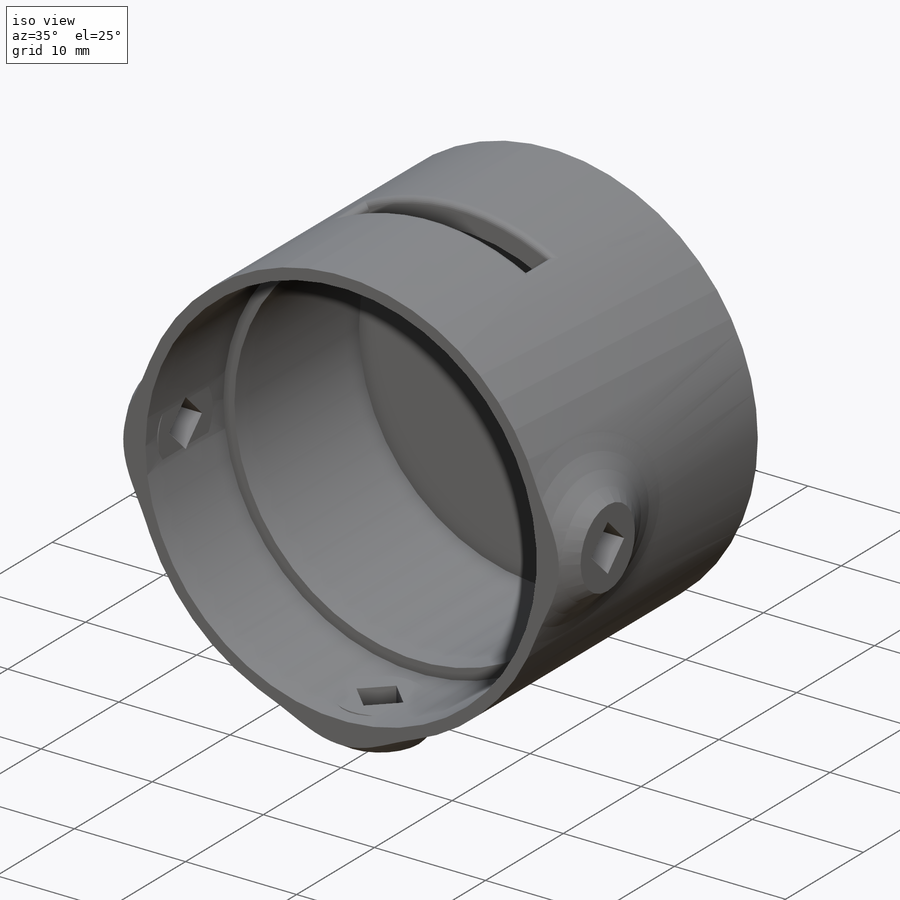
[diagram: iso view]
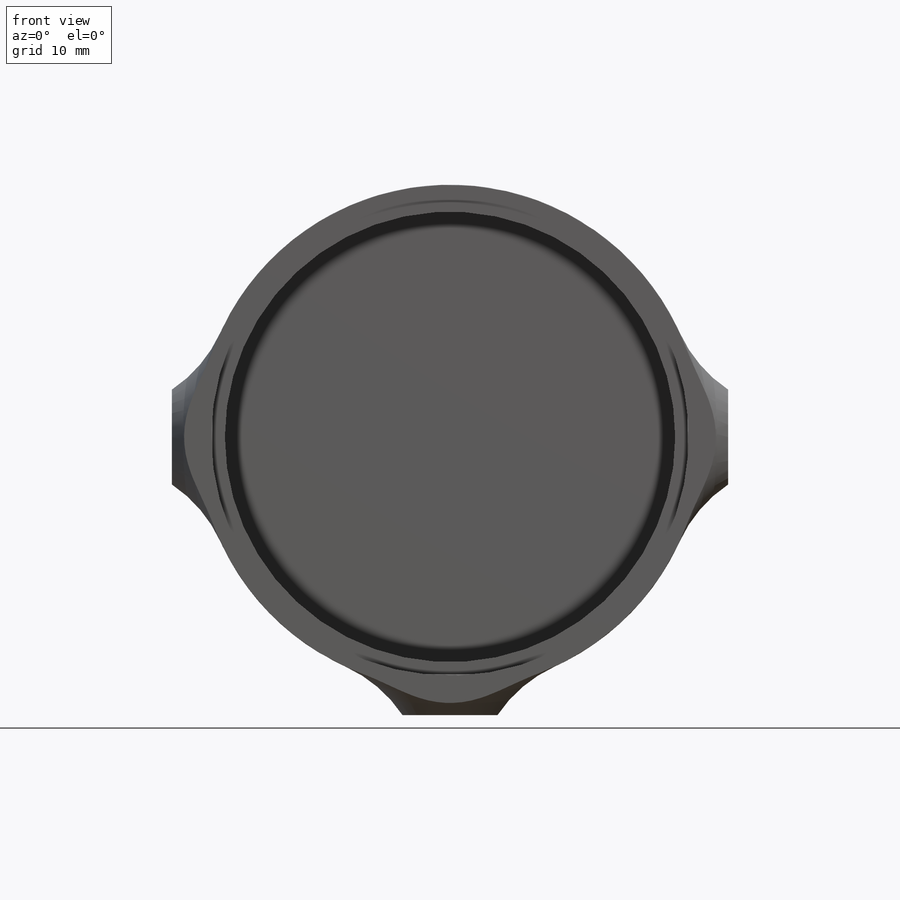
[diagram: front view]
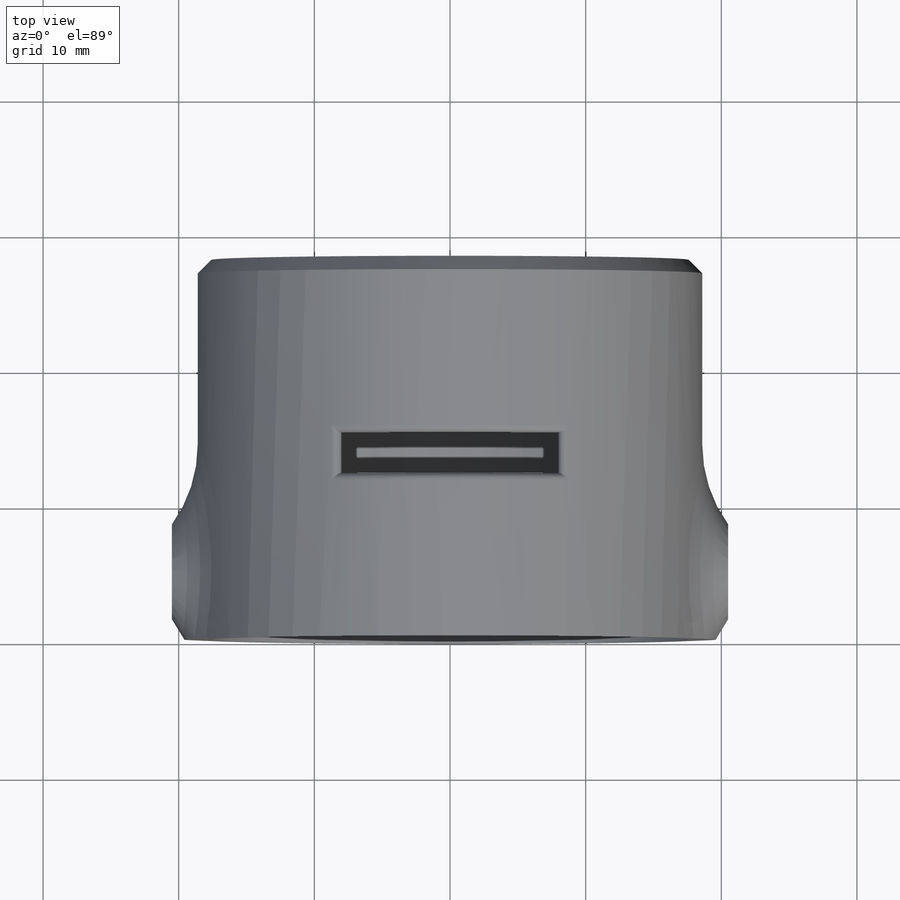
[diagram: top view]
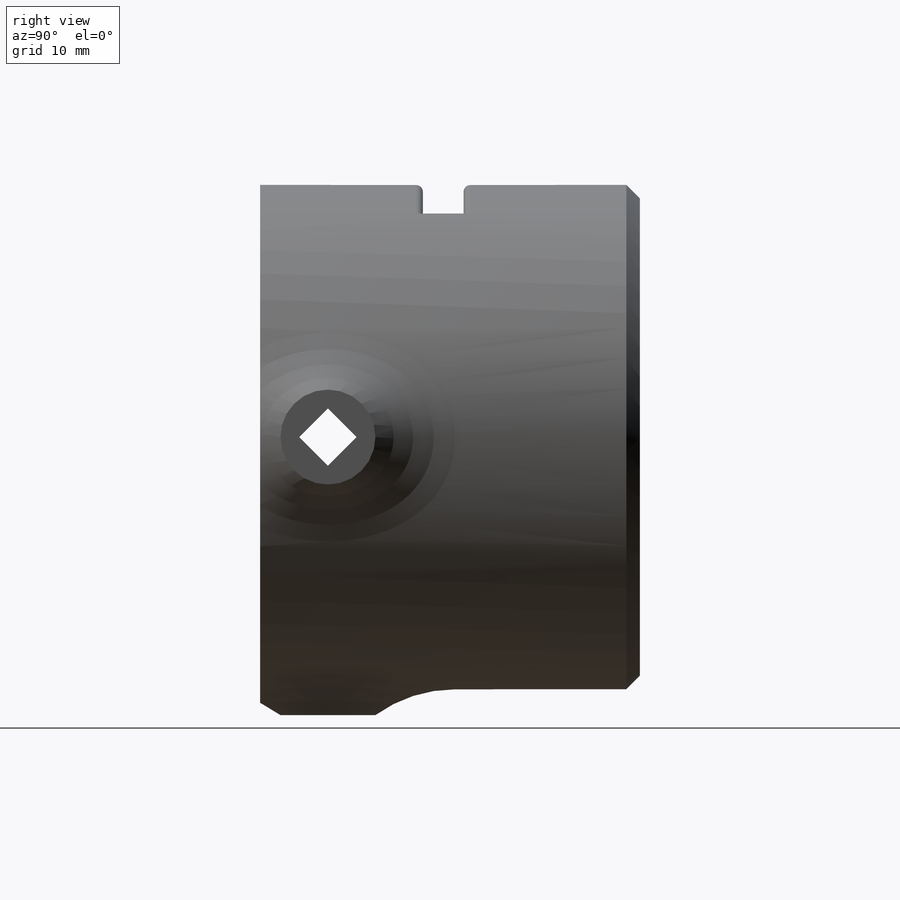
[diagram: right view]
SOLIDWORKS PART (.sldprt)
format: sldprt  version: not decoded by parser v0  size: 397,312 bytes
history: native  units: mm
features: sketch x6, extrude x4, fillet x4, plane x3, cut_extrude x2, material x1, pattern_circular x1, chamfer x1 (+10 scaffold rows collapsed)
feature tree (32):
  scaffold x10  (default folders/planes/origin — collapsed)
  material  "Material <não especificado>"
  plane  "Plano frontal"
  plane  "Plano superior"
  plane  "Plano direito"
  sketch  "Esboço1"  dims[D1=37.2mm]
  extrude  "Ressalto-extrusão1"  Depth=10mm
  sketch  "Esboço2"  dims[D1=33.2mm]
  extrude  "Ressalto-extrusão2"  Depth=16mm
  sketch  "Esboço3"  dims[D1=0.0mm]
  extrude  "Ressalto-extrusão3"  Depth=2mm
  sketch  "Esboço4"  dims[D1=8.0mm]
  cut_extrude  "Corte-extrusão2"  Depth=3mm
  sketch  "Esboço6"  dims[c1.D1=2.115mm c1.D2=~2.991062mm c2.D1=8.0]
  sketch  "Esboço8"  dims[D1=7.0mm]
  extrude  "Ressalto-extrusão4"  Depth=3mm
  cut_extrude  "Corte-extrusão3"  Depth=29mm
  pattern_circular  "PadrãoCircular1"  Count=4 Angle=90deg
  fillet  "Filete2"  Radius=10mm
  fillet  "Filete3"  Radius=10mm
  fillet  "Filete4"  Radius=10mm
  chamfer  "Chanfro3"  Distance=1mm Angle=45deg
  fillet  "Filete5"  Radius=0.5mm
decode coverage: 18 of 18 modeling features carry decoded parameters
note: ~ marks probable driven/reference dimensions
note: suppression state not decoded; provenance and decode notes live in map.json
